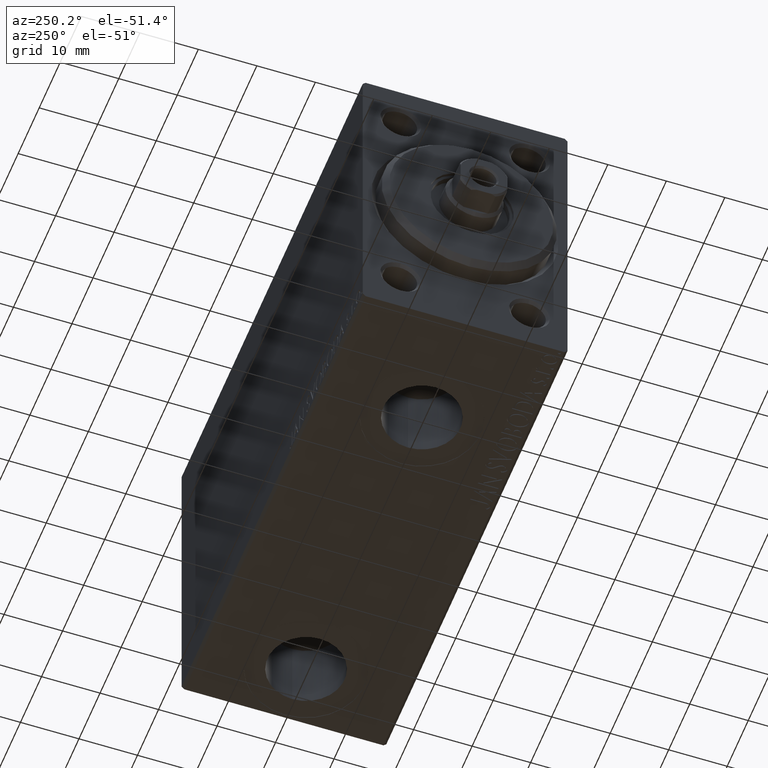
[diagram: clean part render]
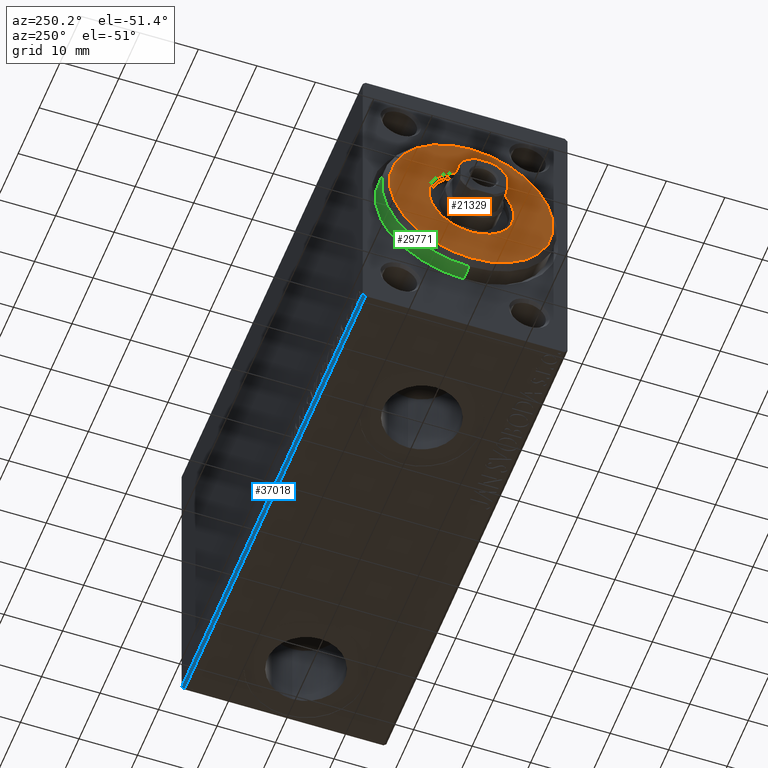
[diagram: same view with three faces highlighted in distinct colors, each labeled with its STEP entity id]
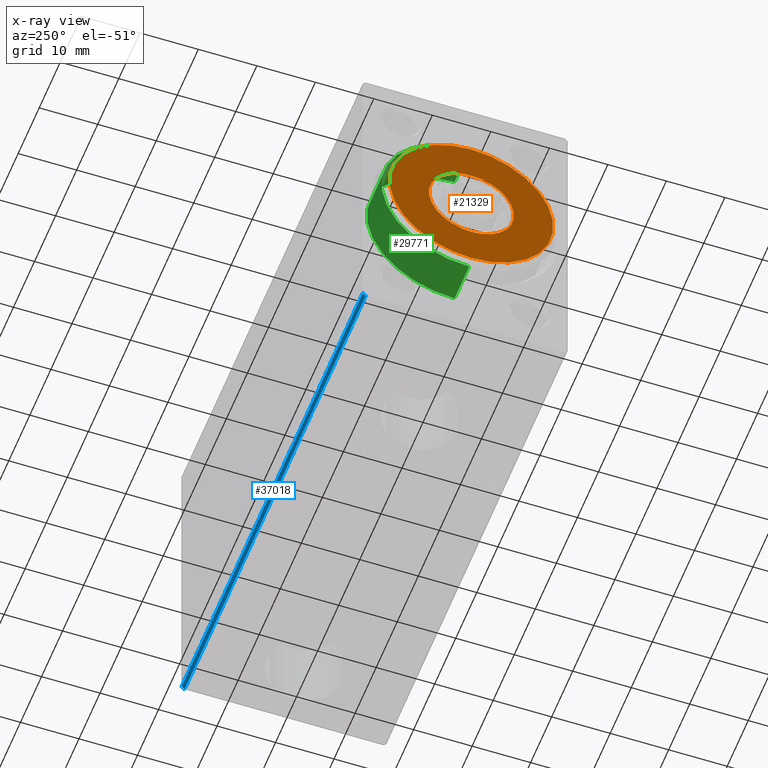
[diagram: x-ray of the same camera — body ghosted, the three highlighted faces saturated]
A machine part, auxiliary view with three faces highlighted in distinct colors.
The next image is the same camera in x-ray (body ghosted, the three faces saturated) — at least one of them is partly hidden behind the body in this view.
Their STEP definitions:

[orange] entity #21329 — the highlighted planar face has unit normal (-1, 0, 0).
#532 = VERTEX_POINT ( 'NONE', #14077 ) ;
#1200 = CIRCLE ( 'NONE', #37211, 7.249999999999999112 ) ;
#2965 = DIRECTION ( 'NONE',  ( 1.000000000000000000, -0.000000000000000000, 0.000000000000000000 ) ) ;
#4119 = CARTESIAN_POINT ( 'NONE',  ( 3.000000000000000000, 1.775737858763662015E-15, -13.99999999999999645 ) ) ;
#5721 = DIRECTION ( 'NONE',  ( 0.000000000000000000, 0.000000000000000000, -1.000000000000000000 ) ) ;
#8514 = ORIENTED_EDGE ( 'NONE', *, *, #37844, .F. ) ;
#11057 = AXIS2_PLACEMENT_3D ( 'NONE', #27543, #2965, #5721 ) ;
#12493 = CARTESIAN_POINT ( 'NONE',  ( 3.000000000000000000, 8.878689293818310074E-16, 7.249999999999999112 ) ) ;
#12540 = CARTESIAN_POINT ( 'NONE',  ( 3.000000000000000000, 0.000000000000000000, 0.000000000000000000 ) ) ;
#12902 = EDGE_CURVE ( 'NONE', #532, #38410, #16817, .T. ) ;
#13459 = EDGE_LOOP ( 'NONE', ( #36896, #42142 ) ) ;
#14077 = CARTESIAN_POINT ( 'NONE',  ( 3.000000000000000000, 0.000000000000000000, 13.99999999999999645 ) ) ;
#15478 = CARTESIAN_POINT ( 'NONE',  ( 3.000000000000000000, 0.000000000000000000, 0.000000000000000000 ) ) ;
#16425 = DIRECTION ( 'NONE',  ( 0.000000000000000000, 0.000000000000000000, -1.000000000000000000 ) ) ;
#16629 = DIRECTION ( 'NONE',  ( 1.000000000000000000, -0.000000000000000000, 0.000000000000000000 ) ) ;
#16817 = CIRCLE ( 'NONE', #21195, 13.99999999999999645 ) ;
#17765 = EDGE_CURVE ( 'NONE', #32372, #30079, #23429, .T. ) ;
#19603 = DIRECTION ( 'NONE',  ( 0.000000000000000000, 0.000000000000000000, -1.000000000000000000 ) ) ;
#19953 = PLANE ( 'NONE',  #11057 ) ;
#21195 = AXIS2_PLACEMENT_3D ( 'NONE', #41061, #16629, #30664 ) ;
#21329 = ADVANCED_FACE ( 'NONE', ( #30547, #37491 ), #19953, .T. ) ;
#23429 = CIRCLE ( 'NONE', #43322, 7.249999999999999112 ) ;
#25691 = DIRECTION ( 'NONE',  ( 1.000000000000000000, -0.000000000000000000, 0.000000000000000000 ) ) ;
#26385 = CARTESIAN_POINT ( 'NONE',  ( 3.000000000000000000, 0.000000000000000000, 0.000000000000000000 ) ) ;
#26549 = DIRECTION ( 'NONE',  ( 1.000000000000000000, 0.000000000000000000, 0.000000000000000000 ) ) ;
#27543 = CARTESIAN_POINT ( 'NONE',  ( 3.000000000000000000, 0.000000000000000000, 0.000000000000000000 ) ) ;
#28989 = EDGE_CURVE ( 'NONE', #38410, #532, #38469, .T. ) ;
#30079 = VERTEX_POINT ( 'NONE', #37269 ) ;
#30547 = FACE_OUTER_BOUND ( 'NONE', #13459, .T. ) ;
#30664 = DIRECTION ( 'NONE',  ( 0.000000000000000000, 0.000000000000000000, -1.000000000000000000 ) ) ;
#32372 = VERTEX_POINT ( 'NONE', #12493 ) ;
#32650 = AXIS2_PLACEMENT_3D ( 'NONE', #26385, #25691, #40001 ) ;
#33385 = EDGE_LOOP ( 'NONE', ( #8514, #33883 ) ) ;
#33883 = ORIENTED_EDGE ( 'NONE', *, *, #17765, .F. ) ;
#36896 = ORIENTED_EDGE ( 'NONE', *, *, #12902, .T. ) ;
#37211 = AXIS2_PLACEMENT_3D ( 'NONE', #15478, #37808, #19603 ) ;
#37269 = CARTESIAN_POINT ( 'NONE',  ( 3.000000000000000000, 0.000000000000000000, -7.249999999999999112 ) ) ;
#37491 = FACE_BOUND ( 'NONE', #33385, .T. ) ;
#37808 = DIRECTION ( 'NONE',  ( 1.000000000000000000, 0.000000000000000000, 0.000000000000000000 ) ) ;
#37844 = EDGE_CURVE ( 'NONE', #30079, #32372, #1200, .T. ) ;
#38410 = VERTEX_POINT ( 'NONE', #4119 ) ;
#38469 = CIRCLE ( 'NONE', #32650, 13.99999999999999645 ) ;
#40001 = DIRECTION ( 'NONE',  ( 0.000000000000000000, 0.000000000000000000, -1.000000000000000000 ) ) ;
#41061 = CARTESIAN_POINT ( 'NONE',  ( 3.000000000000000000, 0.000000000000000000, 0.000000000000000000 ) ) ;
#42142 = ORIENTED_EDGE ( 'NONE', *, *, #28989, .T. ) ;
#43322 = AXIS2_PLACEMENT_3D ( 'NONE', #12540, #26549, #16425 ) ;

[blue] entity #37018 — the highlighted planar face has unit normal (0, -0.7071, 0.7071).
#192 = EDGE_CURVE ( 'NONE', #6973, #33324, #38098, .T. ) ;
#2575 = CARTESIAN_POINT ( 'NONE',  ( 0.000000000000000000, 17.50000000000000711, -26.99999999999999645 ) ) ;
#2894 = DIRECTION ( 'NONE',  ( -0.000000000000000000, 0.7071067811865474617, 0.7071067811865474617 ) ) ;
#6406 = LINE ( 'NONE', #44412, #44624 ) ;
#6973 = VERTEX_POINT ( 'NONE', #9584 ) ;
#8834 = VECTOR ( 'NONE', #41308, 1000.000000000000000 ) ;
#9584 = CARTESIAN_POINT ( 'NONE',  ( 86.00000000000000000, 16.99999999999999289, -27.50000000000001066 ) ) ;
#13166 = CARTESIAN_POINT ( 'NONE',  ( 0.000000000000000000, 17.50000000000000711, -26.99999999999999645 ) ) ;
#13213 = CARTESIAN_POINT ( 'NONE',  ( 86.00000000000000000, 16.99999999999999289, -27.50000000000001066 ) ) ;
#13980 = VERTEX_POINT ( 'NONE', #24230 ) ;
#15012 = EDGE_LOOP ( 'NONE', ( #26932, #23111, #37364, #26047 ) ) ;
#19596 = PLANE ( 'NONE',  #32024 ) ;
#19736 = DIRECTION ( 'NONE',  ( -1.000000000000000000, 0.000000000000000000, 0.000000000000000000 ) ) ;
#20079 = LINE ( 'NONE', #13213, #8834 ) ;
#20104 = VECTOR ( 'NONE', #2894, 1000.000000000000114 ) ;
#20878 = EDGE_CURVE ( 'NONE', #13980, #6973, #20079, .T. ) ;
#23111 = ORIENTED_EDGE ( 'NONE', *, *, #20878, .F. ) ;
#23715 = FACE_OUTER_BOUND ( 'NONE', #15012, .T. ) ;
#24230 = CARTESIAN_POINT ( 'NONE',  ( 0.000000000000000000, 16.99999999999999289, -27.50000000000001066 ) ) ;
#26047 = ORIENTED_EDGE ( 'NONE', *, *, #39456, .F. ) ;
#26932 = ORIENTED_EDGE ( 'NONE', *, *, #192, .F. ) ;
#27160 = DIRECTION ( 'NONE',  ( 0.000000000000000000, -0.7071067811865474617, -0.7071067811865474617 ) ) ;
#30945 = CARTESIAN_POINT ( 'NONE',  ( 86.00000000000000000, 22.25000000000000355, -22.25000000000000355 ) ) ;
#32024 = AXIS2_PLACEMENT_3D ( 'NONE', #44958, #38032, #34336 ) ;
#33324 = VERTEX_POINT ( 'NONE', #44286 ) ;
#34336 = DIRECTION ( 'NONE',  ( -1.000000000000000000, 0.000000000000000000, 0.000000000000000000 ) ) ;
#37018 = ADVANCED_FACE ( 'NONE', ( #23715 ), #19596, .F. ) ;
#37364 = ORIENTED_EDGE ( 'NONE', *, *, #44233, .F. ) ;
#38032 = DIRECTION ( 'NONE',  ( 0.000000000000000000, -0.7071067811865475727, 0.7071067811865475727 ) ) ;
#38098 = LINE ( 'NONE', #30945, #20104 ) ;
#39456 = EDGE_CURVE ( 'NONE', #33324, #41209, #6406, .T. ) ;
#41209 = VERTEX_POINT ( 'NONE', #13166 ) ;
#41246 = LINE ( 'NONE', #2575, #44034 ) ;
#41308 = DIRECTION ( 'NONE',  ( 1.000000000000000000, 0.000000000000000000, 0.000000000000000000 ) ) ;
#44034 = VECTOR ( 'NONE', #27160, 1000.000000000000114 ) ;
#44233 = EDGE_CURVE ( 'NONE', #41209, #13980, #41246, .T. ) ;
#44286 = CARTESIAN_POINT ( 'NONE',  ( 86.00000000000000000, 17.50000000000000711, -26.99999999999999645 ) ) ;
#44412 = CARTESIAN_POINT ( 'NONE',  ( 86.00000000000000000, 17.50000000000000711, -26.99999999999999645 ) ) ;
#44624 = VECTOR ( 'NONE', #19736, 1000.000000000000000 ) ;
#44958 = CARTESIAN_POINT ( 'NONE',  ( 86.00000000000000000, 17.50000000000000711, -26.99999999999999645 ) ) ;

[green] entity #29771 — the highlighted cylindrical surface (partial cylindrical patch) has radius 15 mm, axis along (1, -0, -0).
#720 = LINE ( 'NONE', #39612, #18304 ) ;
#3279 = CIRCLE ( 'NONE', #28954, 15.00000000000000000 ) ;
#4189 = CARTESIAN_POINT ( 'NONE',  ( 3.000000000000000000, 0.000000000000000000, 0.000000000000000000 ) ) ;
#4387 = DIRECTION ( 'NONE',  ( -1.000000000000000000, -0.000000000000000000, -0.000000000000000000 ) ) ;
#4866 = FACE_OUTER_BOUND ( 'NONE', #26681, .T. ) ;
#9751 = ORIENTED_EDGE ( 'NONE', *, *, #32895, .T. ) ;
#9829 = DIRECTION ( 'NONE',  ( 0.000000000000000000, 0.000000000000000000, -1.000000000000000000 ) ) ;
#10014 = CARTESIAN_POINT ( 'NONE',  ( 1.999999999999995781, 1.836970198721029589E-15, -15.00000000000000000 ) ) ;
#11253 = DIRECTION ( 'NONE',  ( 0.000000000000000000, 0.000000000000000000, 1.000000000000000000 ) ) ;
#11307 = DIRECTION ( 'NONE',  ( 0.000000000000000000, 0.000000000000000000, 1.000000000000000000 ) ) ;
#11733 = VERTEX_POINT ( 'NONE', #10014 ) ;
#14256 = DIRECTION ( 'NONE',  ( -1.000000000000000000, 0.000000000000000000, 0.000000000000000000 ) ) ;
#15084 = ORIENTED_EDGE ( 'NONE', *, *, #18169, .F. ) ;
#18169 = EDGE_CURVE ( 'NONE', #11733, #44941, #720, .T. ) ;
#18205 = DIRECTION ( 'NONE',  ( -1.000000000000000000, -0.000000000000000000, -0.000000000000000000 ) ) ;
#18304 = VECTOR ( 'NONE', #4387, 1000.000000000000000 ) ;
#18381 = CARTESIAN_POINT ( 'NONE',  ( -5.000000000000000000, 0.000000000000000000, 0.000000000000000000 ) ) ;
#18434 = EDGE_CURVE ( 'NONE', #44941, #43801, #24213, .T. ) ;
#22737 = AXIS2_PLACEMENT_3D ( 'NONE', #18381, #14256, #11253 ) ;
#23808 = CARTESIAN_POINT ( 'NONE',  ( 3.000000000000000000, 0.000000000000000000, 15.00000000000000000 ) ) ;
#24213 = CIRCLE ( 'NONE', #22737, 15.00000000000000000 ) ;
#24553 = AXIS2_PLACEMENT_3D ( 'NONE', #4189, #18205, #11307 ) ;
#26681 = EDGE_LOOP ( 'NONE', ( #15084, #9751, #33008, #38953 ) ) ;
#27349 = CARTESIAN_POINT ( 'NONE',  ( 1.999999999999995781, 0.000000000000000000, 15.00000000000000000 ) ) ;
#28954 = AXIS2_PLACEMENT_3D ( 'NONE', #31887, #42062, #9829 ) ;
#29771 = ADVANCED_FACE ( 'NONE', ( #4866 ), #35717, .T. ) ;
#30222 = CARTESIAN_POINT ( 'NONE',  ( -5.000000000000000000, 0.000000000000000000, 15.00000000000000000 ) ) ;
#31887 = CARTESIAN_POINT ( 'NONE',  ( 1.999999999999995781, 0.000000000000000000, 0.000000000000000000 ) ) ;
#32895 = EDGE_CURVE ( 'NONE', #11733, #37449, #3279, .T. ) ;
#33008 = ORIENTED_EDGE ( 'NONE', *, *, #43636, .T. ) ;
#33520 = CARTESIAN_POINT ( 'NONE',  ( -5.000000000000000000, 1.836970198721029589E-15, -15.00000000000000000 ) ) ;
#35717 = CYLINDRICAL_SURFACE ( 'NONE', #24553, 15.00000000000000000 ) ;
#37449 = VERTEX_POINT ( 'NONE', #27349 ) ;
#37666 = LINE ( 'NONE', #23808, #42532 ) ;
#37890 = DIRECTION ( 'NONE',  ( -1.000000000000000000, -0.000000000000000000, -0.000000000000000000 ) ) ;
#38953 = ORIENTED_EDGE ( 'NONE', *, *, #18434, .F. ) ;
#39612 = CARTESIAN_POINT ( 'NONE',  ( 3.000000000000000000, 1.836970198721029589E-15, -15.00000000000000000 ) ) ;
#42062 = DIRECTION ( 'NONE',  ( -1.000000000000000000, 0.000000000000000000, 0.000000000000000000 ) ) ;
#42532 = VECTOR ( 'NONE', #37890, 1000.000000000000000 ) ;
#43636 = EDGE_CURVE ( 'NONE', #37449, #43801, #37666, .T. ) ;
#43801 = VERTEX_POINT ( 'NONE', #30222 ) ;
#44941 = VERTEX_POINT ( 'NONE', #33520 ) ;